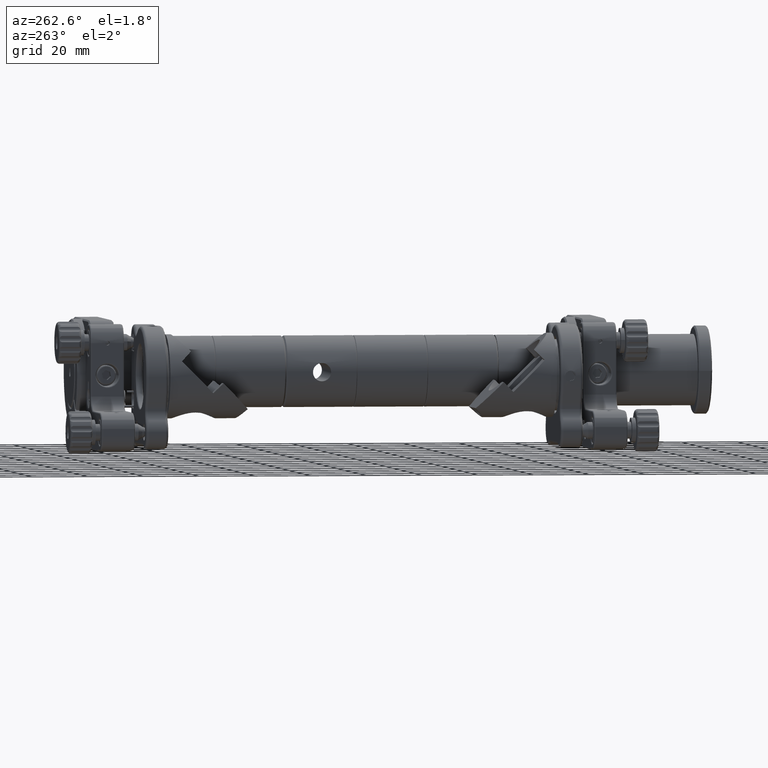
[diagram: clean part render]
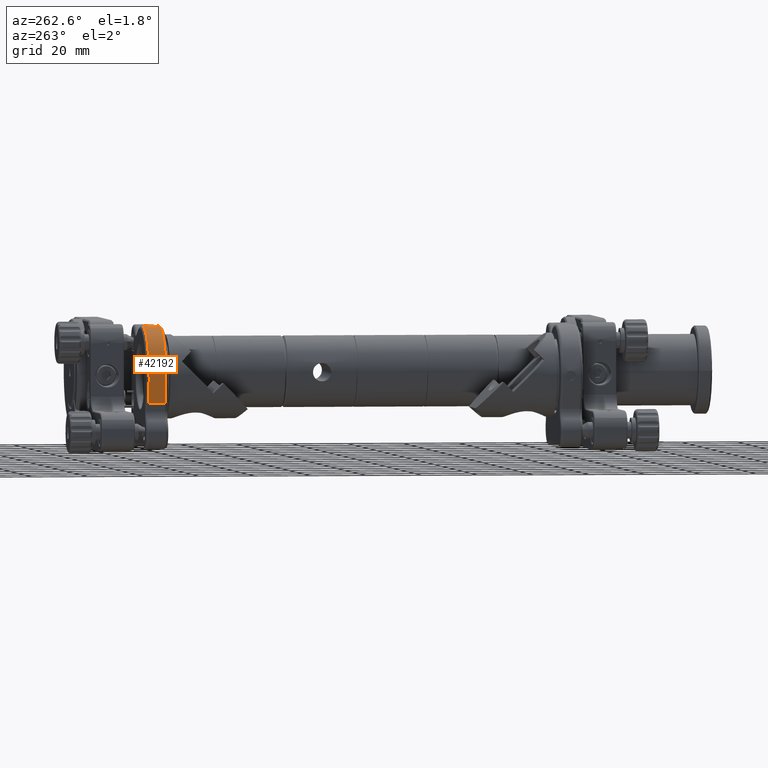
[diagram: same view with one face highlighted and labeled with its STEP entity id]
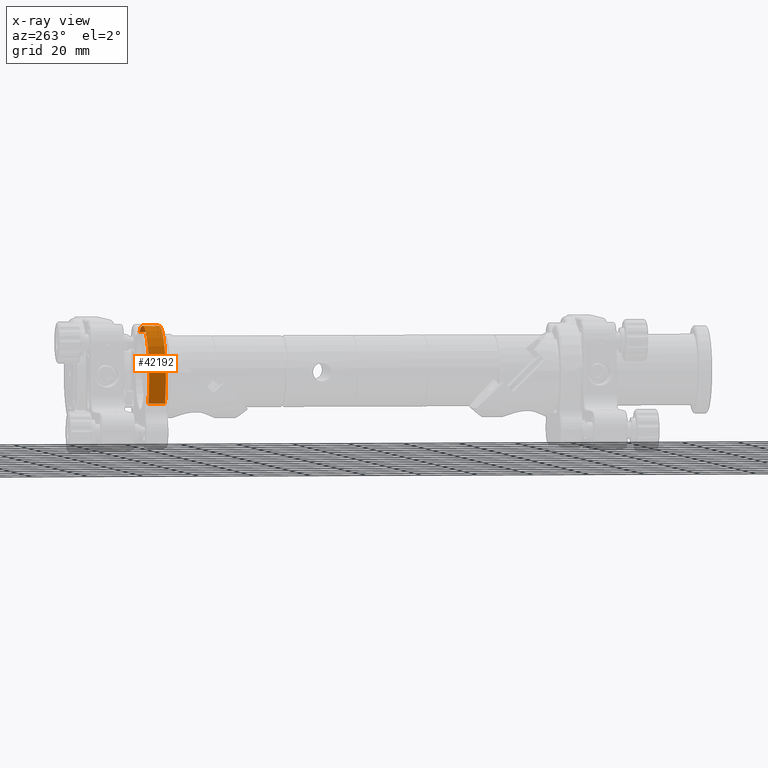
[diagram: x-ray of the same camera — body ghosted, the highlighted face saturated]
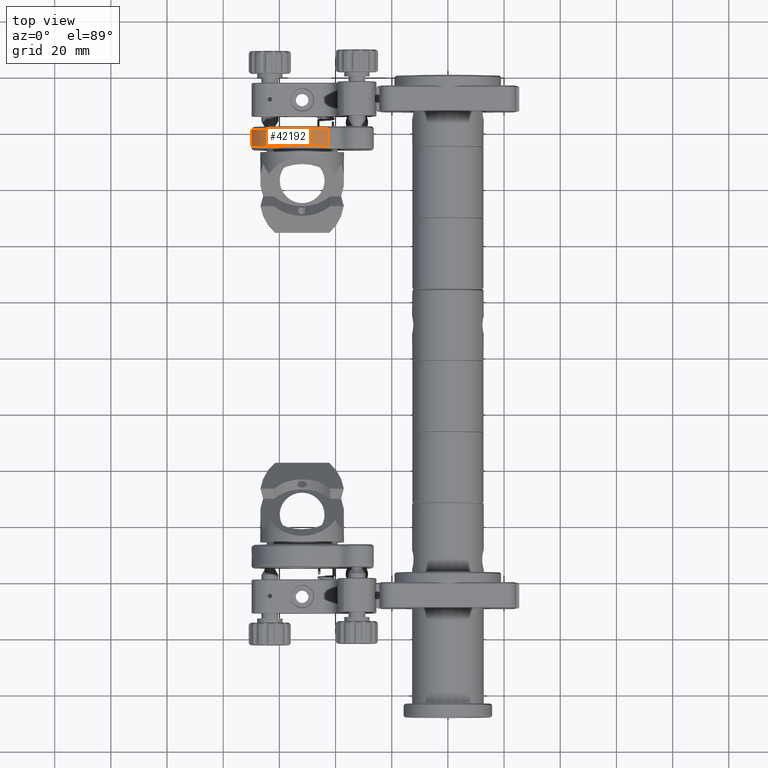
[diagram: same view with one face highlighted and labeled with its STEP entity id]
A machine part, auxiliary view. The second image highlights one B-rep face of the part: STEP entity #42192.
The next image is the same camera in x-ray: the body ghosted, the highlighted face saturated — about 0% of this face is hidden behind the body in this view.
A second angle (top view) of the same face is appended — the face is thin or edge-on in the first view.
In plain terms, the highlighted cylindrical surface (partial cylindrical patch) has radius 18 mm, axis along (-0, -1, 0).
Its self-contained STEP definition (entity closure, byte-faithful):
#236 = DIRECTION ( 'NONE',  ( 2.698458740408366000E-015, -1.445602896647338900E-016, -1.000000000000000000 ) ) ;
#599 = CARTESIAN_POINT ( 'NONE',  ( -67.38381854249445300, 2.085297475245972500, -9.178854141073673000 ) ) ;
#1113 = CARTESIAN_POINT ( 'NONE',  ( -53.33158342021397400, -1.587283430359721400, 17.94308102210110800 ) ) ;
#1318 = CARTESIAN_POINT ( 'NONE',  ( -53.54992202270109700, -2.630662474477640800, 17.92422264214325600 ) ) ;
#1624 = CARTESIAN_POINT ( 'NONE',  ( -50.25008539700279900, -2.304452361367879600, 17.92422332515651500 ) ) ;
#1897 = CARTESIAN_POINT ( 'NONE',  ( -52.00908093674286900, -4.064702524754020300, 17.99999999999992500 ) ) ;
#2856 = DIRECTION ( 'NONE',  ( -8.805037054117872500E-017, -1.000000000000000000, 6.245004513516504300E-017 ) ) ;
#2918 = CARTESIAN_POINT ( 'NONE',  ( -51.90000000000001300, 2.085297475245972500, -3.469446951953614200E-015 ) ) ;
#3130 = ORIENTED_EDGE ( 'NONE', *, *, #33954, .T. ) ;
#5364 = AXIS2_PLACEMENT_3D ( 'NONE', #2918, #21625, #58318 ) ;
#5833 = CARTESIAN_POINT ( 'NONE',  ( -50.41771116865545800, -1.681899384273144000, 17.93891165378884600 ) ) ;
#5911 = CARTESIAN_POINT ( 'NONE',  ( -53.34197841447598200, -3.244998676308547200, 17.94233872388890200 ) ) ;
#6020 = CARTESIAN_POINT ( 'NONE',  ( -51.90000000000010500, -0.7647025247540326600, 17.99999999999999600 ) ) ;
#6295 = CARTESIAN_POINT ( 'NONE',  ( -52.11632744657943300, -4.053992122200892100, 17.99900924745380200 ) ) ;
#6408 = CARTESIAN_POINT ( 'NONE',  ( -50.65643597991150700, -3.504484020228373800, 17.95715323903404600 ) ) ;
#7612 = VERTEX_POINT ( 'NONE', #52887 ) ;
#7667 = VECTOR ( 'NONE', #27878, 1000.000000000000000 ) ;
#7847 = CARTESIAN_POINT ( 'NONE',  ( -42.72114585892644100, 2.085297475245973400, 15.48381854249449700 ) ) ;
#8227 = VERTEX_POINT ( 'NONE', #47288 ) ;
#8838 = VERTEX_POINT ( 'NONE', #10901 ) ;
#9000 = B_SPLINE_CURVE_WITH_KNOTS ( 'NONE', 3,
 ( #52081, #1897, #6295, #19802, #38230, #56490, #56885, #10738, #20197, #10343, #5911, #15577, #1318, #42859, #47640, #28604, #33217, #15385, #1113, #24586, #52279, #56689, #37840, #42478, #33411, #38039, #24199, #24779, #10543, #29392 ),
 .UNSPECIFIED., .F., .F.,
 ( 4, 2, 2, 2, 2, 2, 2, 2, 2, 2, 2, 2, 2, 2, 4 ),
 ( 0.0000000000000000000, 0.0003225849793450103100, 0.0006451699586900206100, 0.0009677549380350309800, 0.001290339917380041200, 0.001935509876070077100, 0.002580679834760113200, 0.002903264814105132300, 0.003225849793450150900, 0.003548434772795169900, 0.003871019752140189000, 0.004193604731485208400, 0.004516189710830226600, 0.004838774690175245600, 0.005161359669520264700 ),
 .UNSPECIFIED. ) ;
#9461 = CARTESIAN_POINT ( 'NONE',  ( -51.90000000000001300, -4.914702524754027000, -3.469446951953614200E-015 ) ) ;
#9945 = EDGE_CURVE ( 'NONE', #7612, #8227, #36591, .T. ) ;
#10343 = CARTESIAN_POINT ( 'NONE',  ( -53.21906982687894300, -3.429026740472624900, 17.95225036044825400 ) ) ;
#10543 = CARTESIAN_POINT ( 'NONE',  ( -52.00771544539124800, -0.7647025247540325500, 18.00000000000000000 ) ) ;
#10738 = CARTESIAN_POINT ( 'NONE',  ( -52.90602888916721700, -3.726964460550698200, 17.97208854099341800 ) ) ;
#10853 = CARTESIAN_POINT ( 'NONE',  ( -50.26055443288892400, -2.629827295739307800, 17.92519618374215200 ) ) ;
#10901 = CARTESIAN_POINT ( 'NONE',  ( -42.72114585892644100, -4.914702524754025200, 15.48381854249449700 ) ) ;
#11398 = ORIENTED_EDGE ( 'NONE', *, *, #41090, .T. ) ;
#11820 = EDGE_CURVE ( 'NONE', #8227, #7612, #9000, .T. ) ;
#11982 = VERTEX_POINT ( 'NONE', #26156 ) ;
#13233 = CARTESIAN_POINT ( 'NONE',  ( -67.38381854249445300, 1.085297475245972500, -9.178854141073673000 ) ) ;
#14900 = CARTESIAN_POINT ( 'NONE',  ( -50.33397103773823700, -2.945511058901034000, 17.93179511917070500 ) ) ;
#15082 = FACE_BOUND ( 'NONE', #47056, .T. ) ;
#15385 = CARTESIAN_POINT ( 'NONE',  ( -53.38324844783979700, -1.683834292015194700, 17.93883207972475800 ) ) ;
#15577 = CARTESIAN_POINT ( 'NONE',  ( -53.50655933697584700, -2.847900567081816700, 17.92835150612998900 ) ) ;
#16491 = CARTESIAN_POINT ( 'NONE',  ( -51.46519666118625500, -4.020821917996829400, 17.99584306738098900 ) ) ;
#16668 = EDGE_LOOP ( 'NONE', ( #51433, #3130, #25201, #11398 ) ) ;
#19802 = CARTESIAN_POINT ( 'NONE',  ( -52.32730513195873100, -4.012037265077059300, 17.99523664135241300 ) ) ;
#19912 = CARTESIAN_POINT ( 'NONE',  ( -50.33478725525344500, -1.881514297286101200, 17.93186662245882700 ) ) ;
#20109 = CARTESIAN_POINT ( 'NONE',  ( -50.88628235680319300, -1.095178082827517900, 17.97207946098657100 ) ) ;
#20197 = CARTESIAN_POINT ( 'NONE',  ( -52.99088959109217000, -3.657294415014398200, 17.96707459363226500 ) ) ;
#20317 = CARTESIAN_POINT ( 'NONE',  ( -50.58828550175863400, -1.407961098030204600, 17.95224267330281600 ) ) ;
#21625 = DIRECTION ( 'NONE',  ( -8.805037054117872500E-017, -1.000000000000000000, 6.245004513516504300E-017 ) ) ;
#24112 = CARTESIAN_POINT ( 'NONE',  ( -51.46747294551654800, -0.8079639689181438200, 17.99589953826642800 ) ) ;
#24199 = CARTESIAN_POINT ( 'NONE',  ( -52.32867584157279600, -0.8177144608807968000, 17.99520572068135800 ) ) ;
#24504 = CARTESIAN_POINT ( 'NONE',  ( -51.07032656264151900, -0.9723674641625597000, 17.98196657297470600 ) ) ;
#24586 = CARTESIAN_POINT ( 'NONE',  ( -53.21213777905286000, -1.408547519010849000, 17.95221106447612100 ) ) ;
#24699 = CARTESIAN_POINT ( 'NONE',  ( -50.46730554214018800, -3.240231916105452500, 17.94299250388826300 ) ) ;
#24779 = CARTESIAN_POINT ( 'NONE',  ( -52.11712627130392400, -0.7754984387380999800, 17.99900130810320700 ) ) ;
#25201 = ORIENTED_EDGE ( 'NONE', *, *, #29995, .F. ) ;
#25673 = AXIS2_PLACEMENT_3D ( 'NONE', #32612, #42254, #37217 ) ;
#26156 = CARTESIAN_POINT ( 'NONE',  ( -67.38381854249445300, -4.914702524754027000, -9.178854141073673000 ) ) ;
#27343 = LINE ( 'NONE', #7847, #28031 ) ;
#27408 = VERTEX_POINT ( 'NONE', #13233 ) ;
#27492 = ORIENTED_EDGE ( 'NONE', *, *, #9945, .T. ) ;
#27708 = DIRECTION ( 'NONE',  ( 8.805037054117872500E-017, 1.000000000000000000, -6.245004513516504300E-017 ) ) ;
#27878 = DIRECTION ( 'NONE',  ( -8.805037054117872500E-017, -1.000000000000000000, 6.245004513516504300E-017 ) ) ;
#28031 = VECTOR ( 'NONE', #2856, 1000.000000000000000 ) ;
#28500 = VERTEX_POINT ( 'NONE', #46266 ) ;
#28604 = CARTESIAN_POINT ( 'NONE',  ( -53.49713576757312000, -1.986563717015867900, 17.92901573720281800 ) ) ;
#29112 = CARTESIAN_POINT ( 'NONE',  ( -50.26085692662742600, -2.197277223743193900, 17.92522402656862800 ) ) ;
#29392 = CARTESIAN_POINT ( 'NONE',  ( -51.90000000000010500, -0.7647025247540326600, 17.99999999999999600 ) ) ;
#29508 = CARTESIAN_POINT ( 'NONE',  ( -50.30294303610346400, -1.986365238757931800, 17.92902271379363600 ) ) ;
#29995 = EDGE_CURVE ( 'NONE', #28500, #8838, #27343, .T. ) ;
#30876 = CYLINDRICAL_SURFACE ( 'NONE', #5364, 18.00000000000000400 ) ;
#32612 = CARTESIAN_POINT ( 'NONE',  ( -51.90000000000001300, 1.085297475245972500, -3.469446951953614200E-015 ) ) ;
#32987 = AXIS2_PLACEMENT_3D ( 'NONE', #9461, #27708, #236 ) ;
#33217 = CARTESIAN_POINT ( 'NONE',  ( -53.46595240986337000, -1.883677683819952000, 17.93180178879480000 ) ) ;
#33411 = CARTESIAN_POINT ( 'NONE',  ( -52.63142031406898300, -0.9317237715974963100, 17.98541143059284400 ) ) ;
#33954 = EDGE_CURVE ( 'NONE', #11982, #8838, #37042, .T. ) ;
#35250 = CIRCLE ( 'NONE', #25673, 18.00000000000000400 ) ;
#36591 = B_SPLINE_CURVE_WITH_KNOTS ( 'NONE', 3,
 ( #6020, #38151, #24112, #24504, #20109, #47361, #20317, #51596, #5833, #19912, #29508, #29112, #1624, #38339, #10853, #42971, #14900, #47559, #24699, #56800, #6408, #38550, #53375, #16491, #39337, #57999 ),
 .UNSPECIFIED., .F., .F.,
 ( 4, 2, 2, 2, 2, 2, 2, 2, 2, 2, 2, 2, 4 ),
 ( 0.005161359669520264700, 0.005806379222769854200, 0.006451398776019443700, 0.006773908552644238900, 0.007096418329269034100, 0.007418928105893829300, 0.007741437882518624500, 0.008063947659143418800, 0.008386457435768213100, 0.008708967212393007400, 0.009031476989017803500, 0.009676496542267407800, 0.01032151609551701400 ),
 .UNSPECIFIED. ) ;
#37042 = CIRCLE ( 'NONE', #32987, 18.00000000000000400 ) ;
#37217 = DIRECTION ( 'NONE',  ( 2.698458740408366000E-015, -1.445602896647338900E-016, -1.000000000000000000 ) ) ;
#37840 = CARTESIAN_POINT ( 'NONE',  ( -52.90656584715838300, -1.102881422307871800, 17.97205682005110100 ) ) ;
#37856 = LINE ( 'NONE', #599, #7667 ) ;
#38039 = CARTESIAN_POINT ( 'NONE',  ( -52.43154339361463900, -0.8489237157100836300, 17.99242789687475500 ) ) ;
#38151 = CARTESIAN_POINT ( 'NONE',  ( -51.68461933160897800, -0.7647025247540325500, 18.00000000000000400 ) ) ;
#38230 = CARTESIAN_POINT ( 'NONE',  ( -52.43213398744585900, -3.980279291578937800, 17.99241025001576600 ) ) ;
#38339 = CARTESIAN_POINT ( 'NONE',  ( -50.24991560458590100, -2.522381602206625200, 17.92420769504970600 ) ) ;
#38550 = CARTESIAN_POINT ( 'NONE',  ( -50.88450511954105300, -3.732872038705227400, 17.97197779423847300 ) ) ;
#39337 = CARTESIAN_POINT ( 'NONE',  ( -51.68188898556673600, -4.064702524754010500, 17.99999999999992500 ) ) ;
#41090 = EDGE_CURVE ( 'NONE', #28500, #27408, #35250, .T. ) ;
#42192 = ADVANCED_FACE ( 'NONE', ( #15082, #42364 ), #30876, .T. ) ;
#42254 = DIRECTION ( 'NONE',  ( -8.805037054117872500E-017, -1.000000000000000000, 6.245004513516504300E-017 ) ) ;
#42364 = FACE_OUTER_BOUND ( 'NONE', #16668, .T. ) ;
#42478 = CARTESIAN_POINT ( 'NONE',  ( -52.72789999602551300, -0.9833985716854770600, 17.98117300802125800 ) ) ;
#42859 = CARTESIAN_POINT ( 'NONE',  ( -53.55003882686556000, -2.307617441497434200, 17.92421188982558500 ) ) ;
#42971 = CARTESIAN_POINT ( 'NONE',  ( -50.30233651407510100, -2.840768036564045800, 17.92896849734826500 ) ) ;
#46266 = CARTESIAN_POINT ( 'NONE',  ( -42.72114585892644100, 1.085297475245974300, 15.48381854249449700 ) ) ;
#47056 = EDGE_LOOP ( 'NONE', ( #55790, #27492 ) ) ;
#47288 = CARTESIAN_POINT ( 'NONE',  ( -51.90000000000005500, -4.064702524754015800, 17.99999999999999600 ) ) ;
#47361 = CARTESIAN_POINT ( 'NONE',  ( -50.65797660404457000, -1.323169228357809800, 17.95726019711624100 ) ) ;
#47559 = CARTESIAN_POINT ( 'NONE',  ( -50.41668851186697300, -3.145449703837603500, 17.93882688292992700 ) ) ;
#47640 = CARTESIAN_POINT ( 'NONE',  ( -53.53929472403285000, -2.198234729202536400, 17.92521020163183100 ) ) ;
#51433 = ORIENTED_EDGE ( 'NONE', *, *, #54364, .T. ) ;
#51596 = CARTESIAN_POINT ( 'NONE',  ( -50.46843638953627200, -1.587206993421965900, 17.94308327894755500 ) ) ;
#52081 = CARTESIAN_POINT ( 'NONE',  ( -51.90000000000005500, -4.064702524754015800, 17.99999999999999600 ) ) ;
#52279 = CARTESIAN_POINT ( 'NONE',  ( -53.14394445099590300, -1.325220784843660600, 17.95713115601550700 ) ) ;
#52887 = CARTESIAN_POINT ( 'NONE',  ( -51.90000000000010500, -0.7647025247540326600, 17.99999999999999600 ) ) ;
#53375 = CARTESIAN_POINT ( 'NONE',  ( -51.06834474226960900, -3.855890569765333200, 17.98187340578109800 ) ) ;
#54364 = EDGE_CURVE ( 'NONE', #27408, #11982, #37856, .T. ) ;
#55790 = ORIENTED_EDGE ( 'NONE', *, *, #11820, .T. ) ;
#56490 = CARTESIAN_POINT ( 'NONE',  ( -52.63194254056900000, -3.897422090525791900, 17.98538999584865600 ) ) ;
#56689 = CARTESIAN_POINT ( 'NONE',  ( -52.98990400567251400, -1.171128032742956100, 17.96713851479765000 ) ) ;
#56800 = CARTESIAN_POINT ( 'NONE',  ( -50.58684631315762900, -3.419560514869796700, 17.95213694240618100 ) ) ;
#56885 = CARTESIAN_POINT ( 'NONE',  ( -52.72669947111154400, -3.846726790764780600, 17.98122989774642000 ) ) ;
#57999 = CARTESIAN_POINT ( 'NONE',  ( -51.90000000000005500, -4.064702524754015800, 17.99999999999999600 ) ) ;
#58318 = DIRECTION ( 'NONE',  ( 2.698458740408366000E-015, -1.445602896647338900E-016, -1.000000000000000000 ) ) ;